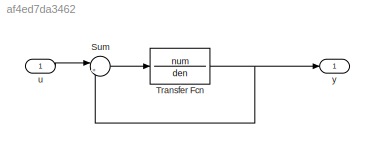
MODEL slx_af4ed7da3462
KIND model
BLOCK [Sum] Sum
  IconShape = round
  InputSameDT = off
  Inputs = |+-
  OutDataTypeStr = Inherit: Inherit via internal rule
  Ports = [2, 1]
  SaturateOnIntegerOverflow = off
BLOCK [TransferFcn] Transfer Fcn
  Denominator = den
  Numerator = num
BLOCK [Inport] u
  IconDisplay = Port number
BLOCK [Outport] y
  IconDisplay = Port number
LINE Sum:1 -> Transfer Fcn:1
NET Transfer Fcn:1 -> Sum:2, y:1
LINE u:1 -> Sum:1
note: NET lines group one-source signal fan-out (src -> all destinations, sorted); 1:1 wires keep LINE
